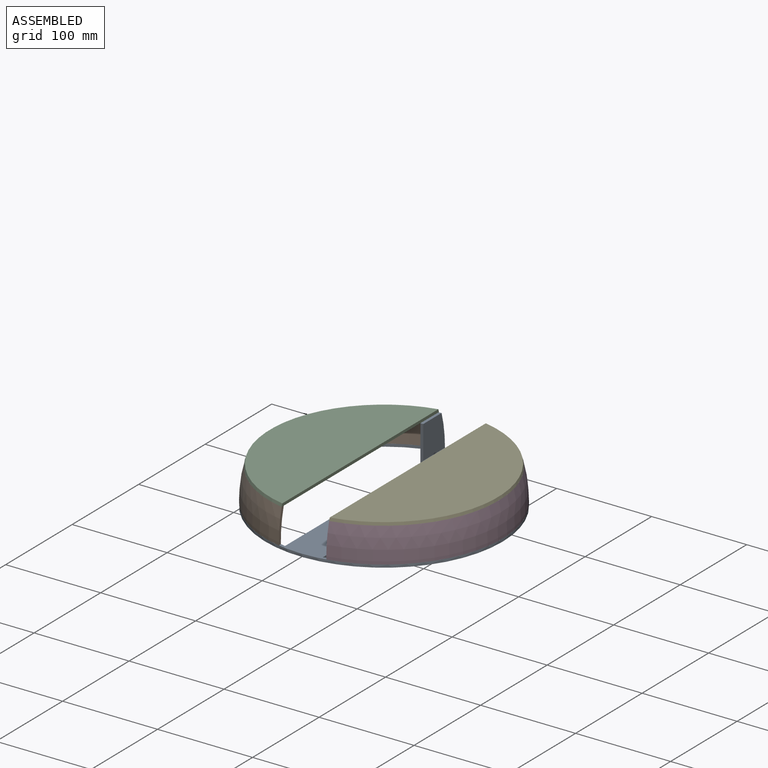
[diagram: assembled view]
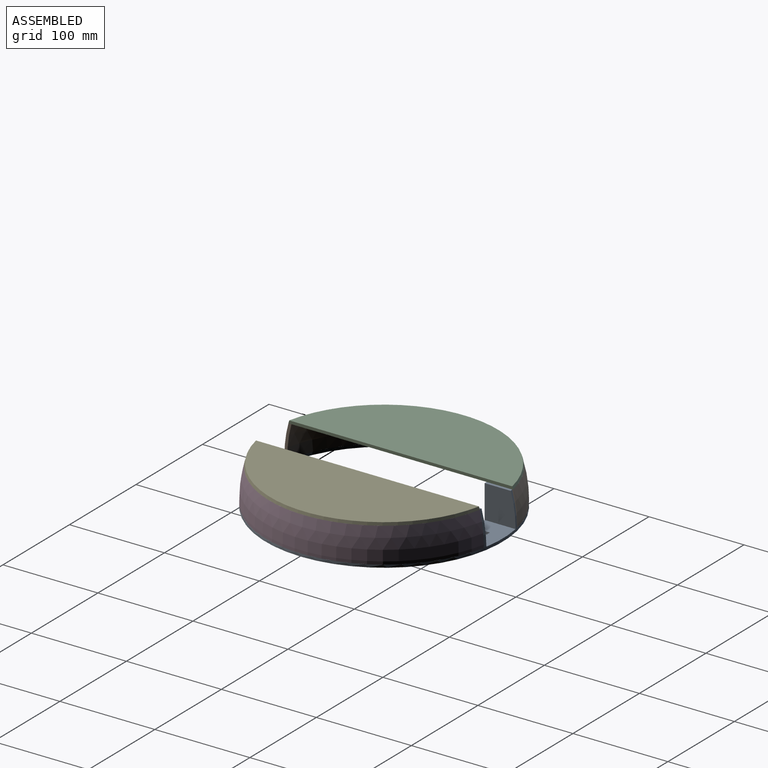
[diagram: assembled view, second angle]
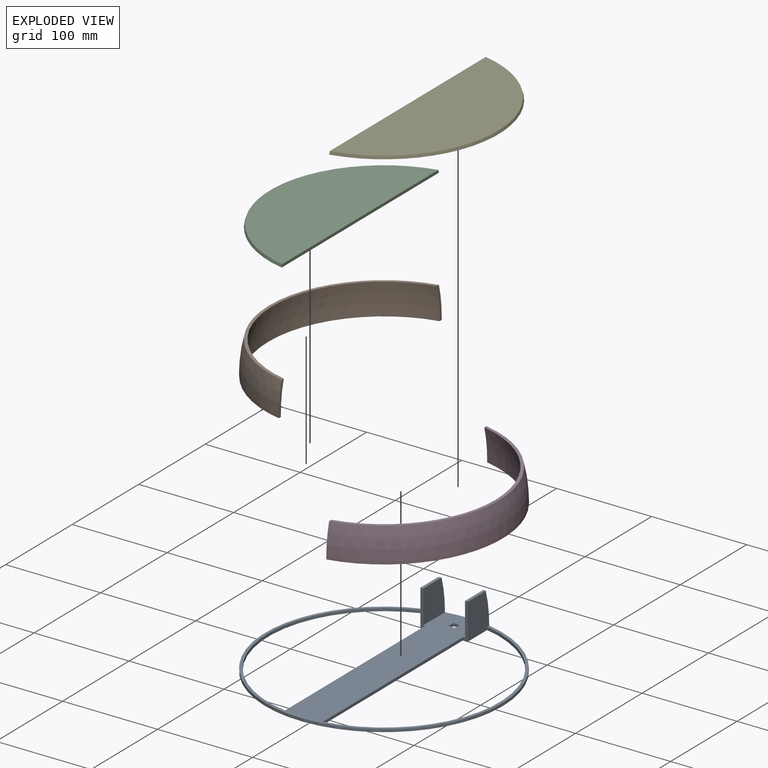
[diagram: exploded view]
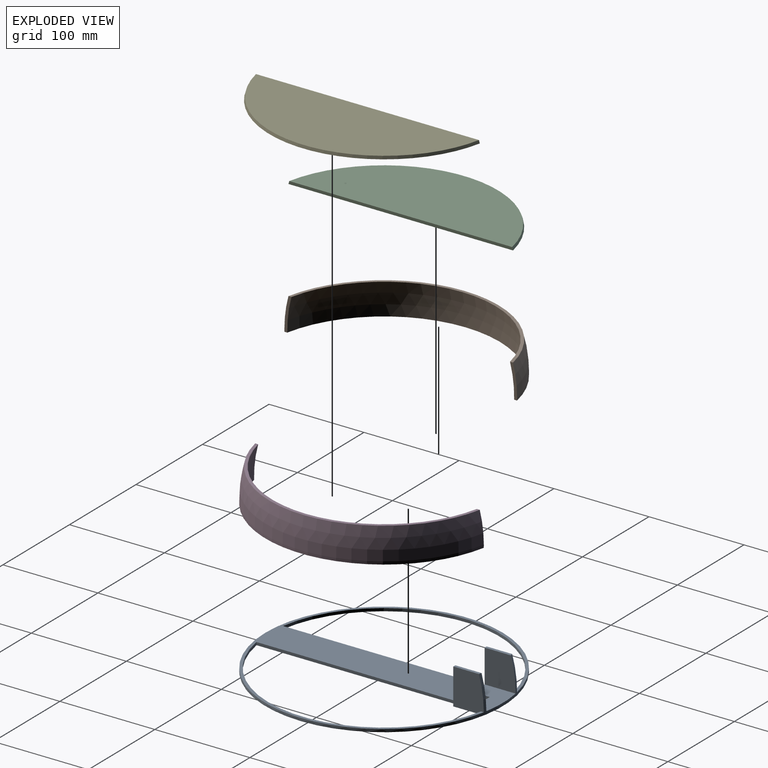
[diagram: exploded view, second angle]
ASSEMBLY  parts=5 mates=4
PART A: 21 faces, bbox 250x250x38 mm
  f0: cylinder r=125mm len=250mm, axis (0,0,-1), area 2356.2mm2, adj f3,f16,f19,f20
  f1: plane 27.62x3mm, normal (0,0,1), area 82mm2, adj f5,f6,f17,f20
  f2: plane 27.62x3mm, normal (0,0,1), area 82mm2, adj f10,f15,f18,f19
  f3: plane 250x250mm, normal (0,0,1), area 12096mm2, adj f0,f4,f5,f6,f7,f8,f9,f10
  f4: plane 210.7x3mm, normal (1,0,0), area 632.1mm2, adj f3,f5,f13,f16
  f5: plane 38x5mm, normal (0,-1,0), area 120mm2, adj f1,f3,f4,f6,f16,f17
  f6: plane 38x32.13mm, normal (1,0,0), area 1152.5mm2, adj f1,f3,f5,f13,f16,f20
  f7: plane 7x3mm, normal (-1,0,0), area 21mm2, adj f3,f8,f14,f16
  f8: plane 7x3mm, normal (0,1,0), area 21mm2, adj f3,f7,f9,f16
  f9: plane 7x3mm, normal (1,0,0), area 21mm2, adj f3,f8,f14,f16
  f10: plane 38x5mm, normal (0,-1,0), area 120mm2, adj f2,f3,f11,f15,f16,f18
  f11: plane 210.7x3mm, normal (-1,0,0), area 632.1mm2, adj f3,f10,f12,f16
  f12: cylinder r=122mm len=239.76mm, axis (0,0,-1), area 1014mm2, adj f3,f11,f15,f16
  f13: cylinder r=122mm len=239.76mm, axis (0,0,-1), area 1014mm2, adj f3,f4,f6,f16
  f14: plane 7x3mm, normal (0,-1,0), area 21mm2, adj f3,f7,f9,f16
  f15: plane 38x32.13mm, normal (-1,0,0), area 1152.5mm2, adj f2,f3,f10,f12,f16,f19
  f16: plane 250x250mm, normal (0,0,-1), area 12290.5mm2, adj f0,f4,f5,f6,f7,f8,f9,f10
  f17: plane 35x32.7mm, normal (-1,0,0), area 1085.7mm2, adj f1,f3,f5,f20
  f18: plane 35x32.7mm, normal (1,0,0), area 1085.7mm2, adj f2,f3,f10,f19
  f19: sphere r=125mm, area 108.4mm2, adj f0,f2,f15,f18
  f20: sphere r=125mm, area 108.4mm2, adj f0,f1,f6,f17
PART B: 7 faces, bbox 100.9x244.9x35 mm
  f0: plane 35x7.43mm, normal (1,0,0), area 108.4mm2, adj f1,f2,f3,f4,f6
  f1: sphere r=122mm, area 11632.7mm2, adj f0,f2,f5,f6
  f2: plane 244.88x99.96mm, normal (0,0,-1), area 1012.9mm2, adj f0,f1,f3,f5
  f3: cone r=124.96mm half-angle=0.7deg, axis (0,0,1), area 1027mm2, adj f0,f2,f4,f5
  f4: sphere r=125mm, area 10937.1mm2, adj f0,f3,f5,f6
  f5: plane 35x7.43mm, normal (1,0,0), area 108.4mm2, adj f1,f2,f3,f4,f6
  f6: plane 236.44x95.83mm, normal (0,0,1), area 1007.5mm2, adj f0,f1,f4,f5
PART C: 4 faces, bbox 96x236.4x3 mm
  f0: sphere r=125mm, area 1021.2mm2, adj f1,f2,f3
  f1: plane 234.73x95mm, normal (0,0,1), area 16663.2mm2, adj f0,f3
  f2: plane 236.44x95.83mm, normal (0,0,-1), area 16936.9mm2, adj f0,f3
  f3: plane 236.44x3mm, normal (1,0,0), area 706.8mm2, adj f0,f1,f2
PART D: 7 faces, bbox 100.9x244.9x35 mm
  f0: plane 35x7.43mm, normal (-1,0,0), area 108.4mm2, adj f1,f2,f3,f4,f6
  f1: sphere r=122mm, area 11632.7mm2, adj f0,f4,f5,f6
  f2: sphere r=125mm, area 10937.1mm2, adj f0,f3,f5,f6
  f3: cone r=124.96mm half-angle=0.7deg, axis (0,0,1), area 1027mm2, adj f0,f2,f4,f5
  f4: plane 244.88x99.96mm, normal (0,0,-1), area 1012.9mm2, adj f0,f1,f3,f5
  f5: plane 35x7.43mm, normal (-1,0,0), area 108.4mm2, adj f1,f2,f3,f4,f6
  f6: plane 236.44x95.83mm, normal (0,0,1), area 1007.5mm2, adj f0,f1,f2,f5
PART E: 4 faces, bbox 96x236.4x3 mm
  f0: plane 236.44x95.83mm, normal (0,0,-1), area 16936.9mm2, adj f1,f3
  f1: sphere r=125mm, area 1021.2mm2, adj f0,f2,f3
  f2: plane 234.73x95mm, normal (0,0,1), area 16663.2mm2, adj f1,f3
  f3: plane 236.44x3mm, normal (-1,0,0), area 706.8mm2, adj f0,f1,f2
PLACE A t=(-1.72,0.11,-0.46)mm fixed
PLACE B t=(-1.72,0.11,5.54)mm
PLACE C t=(-1.72,0.11,5.54)mm
PLACE D t=(-1.72,0.11,5.54)mm
PLACE E t=(-1.72,0.11,5.54)mm
MATE fastened D.f3 <-> A.f0  axis (0,0,-1) through (-1.72,0.11,2.54)mm
MATE fastened B.f3 <-> A.f0  axis (0,0,-1) through (-1.72,0.11,2.54)mm
MATE fastened C.f2 <-> B.f3  axis (0,0,-1) through (-1.72,0.11,37.54)mm
MATE fastened E.f0 <-> D.f3  axis (0,0,-1) through (-1.72,0.11,37.54)mm
